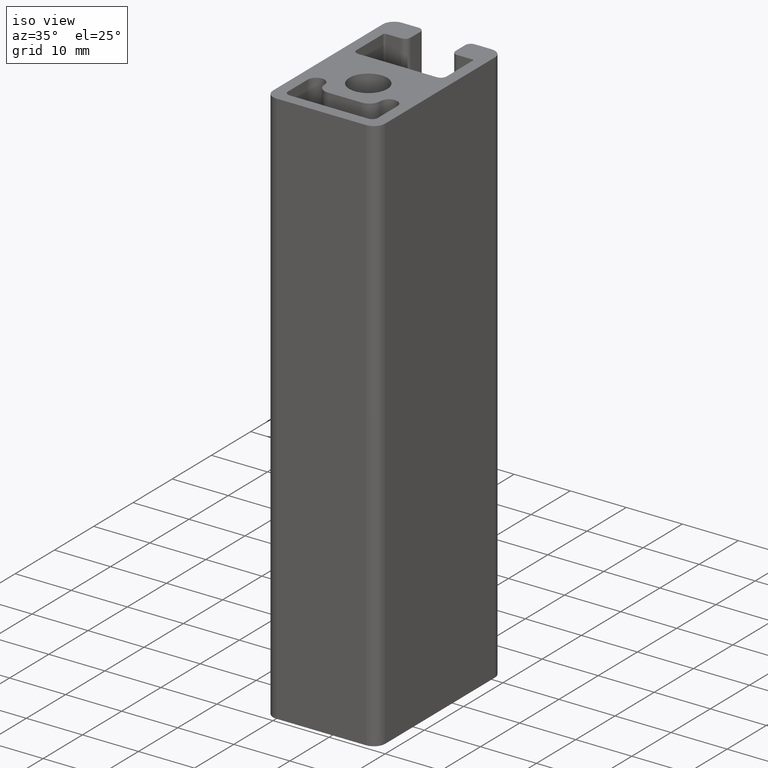
[diagram: clean part render]
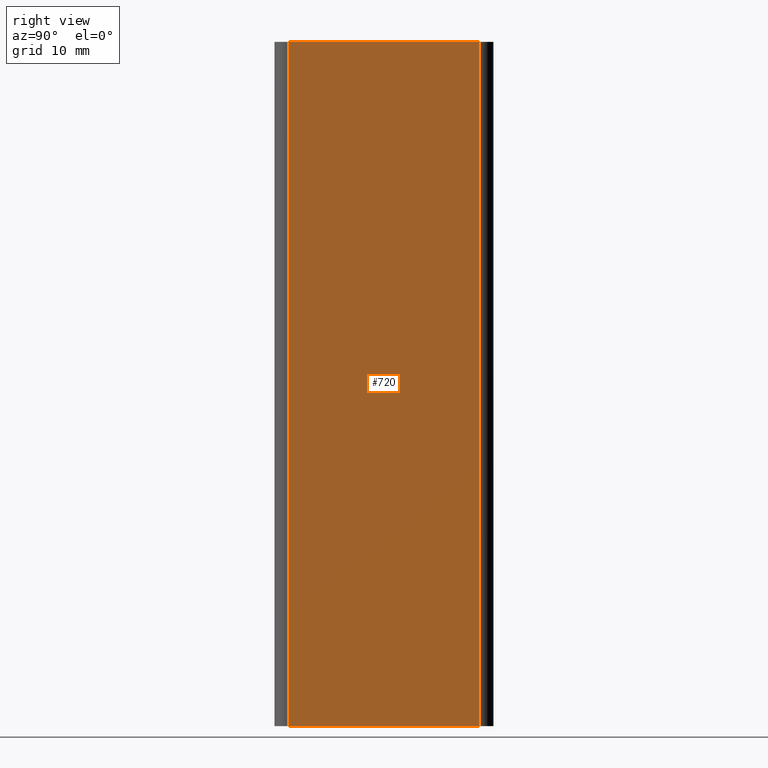
[diagram: tour spotlight — one face highlighted and labeled with its STEP entity id]
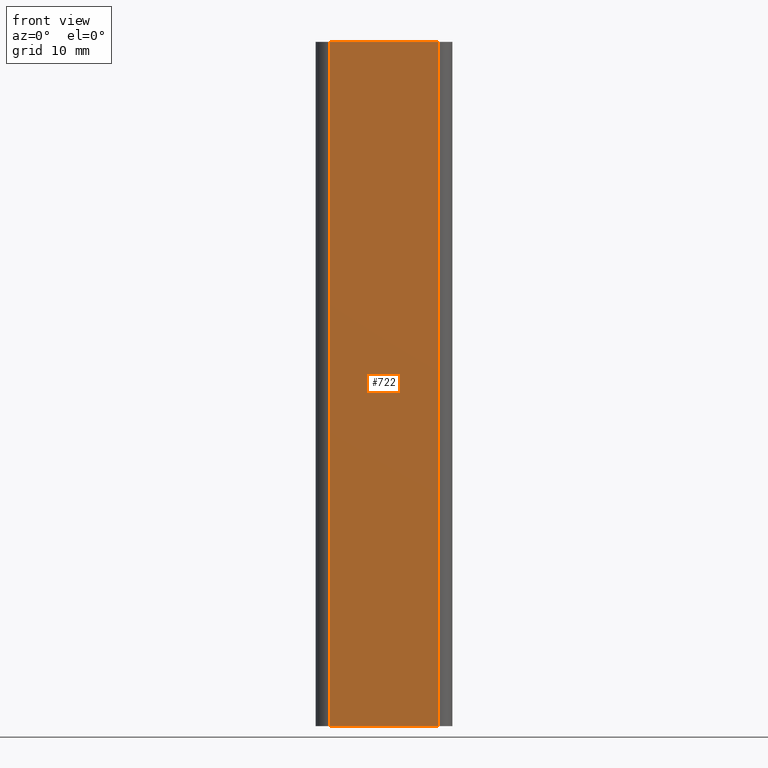
[diagram: tour spotlight — one face highlighted and labeled with its STEP entity id]
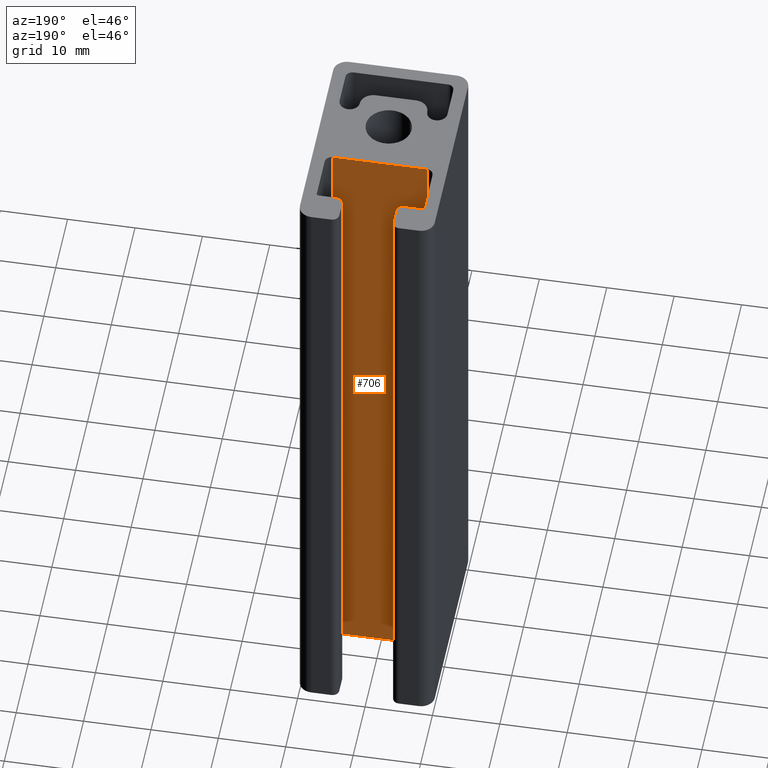
[diagram: tour spotlight — one face highlighted and labeled with its STEP entity id]
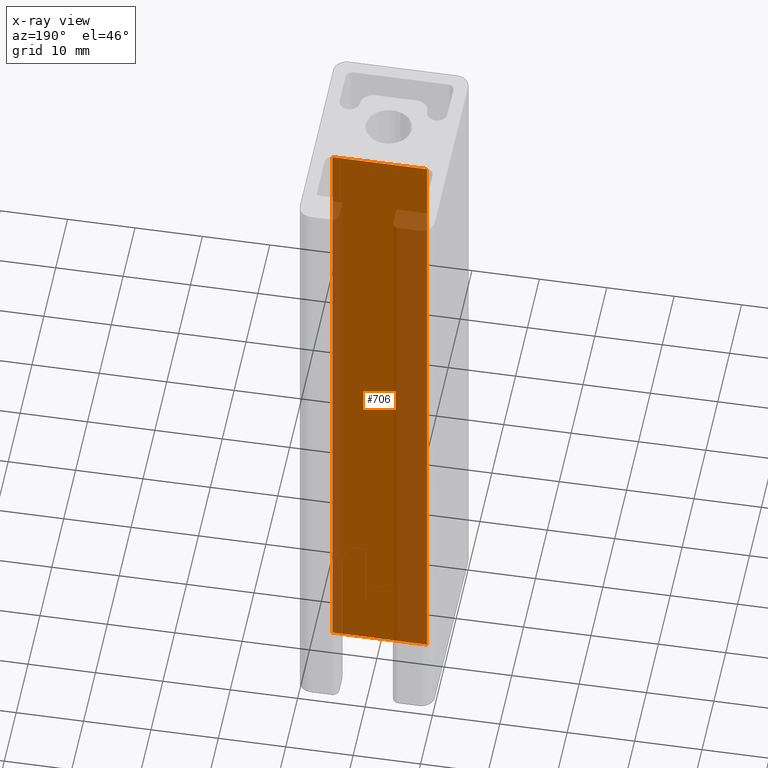
[diagram: x-ray of the same camera — body ghosted, this tour face saturated]
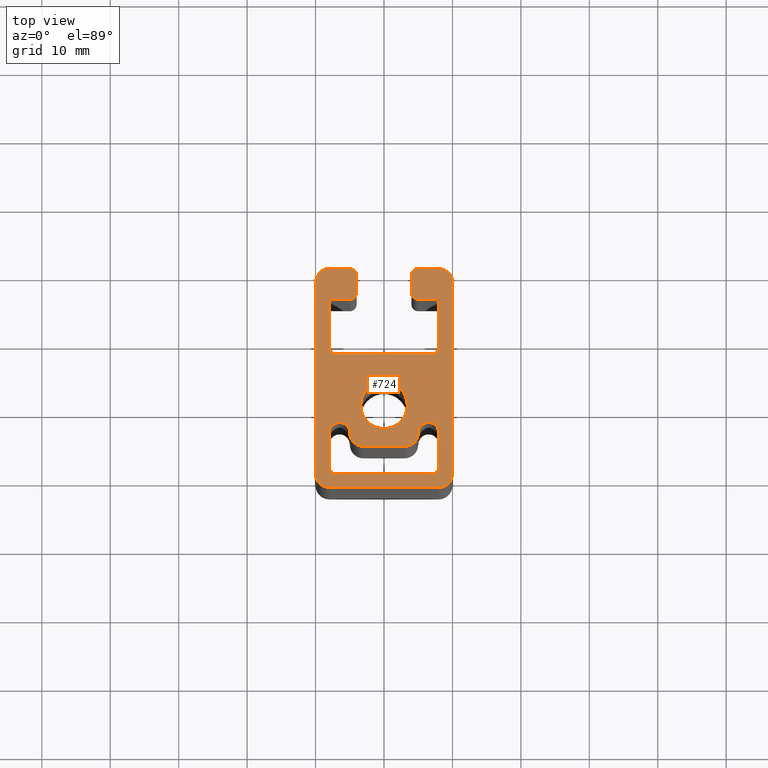
[diagram: tour spotlight — one face highlighted and labeled with its STEP entity id]
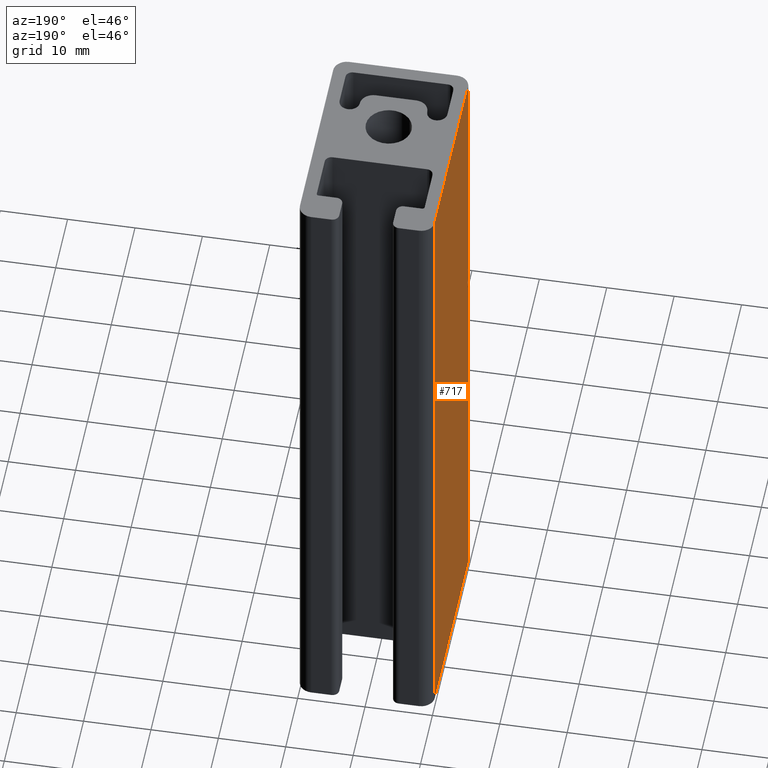
[diagram: tour spotlight — one face highlighted and labeled with its STEP entity id]
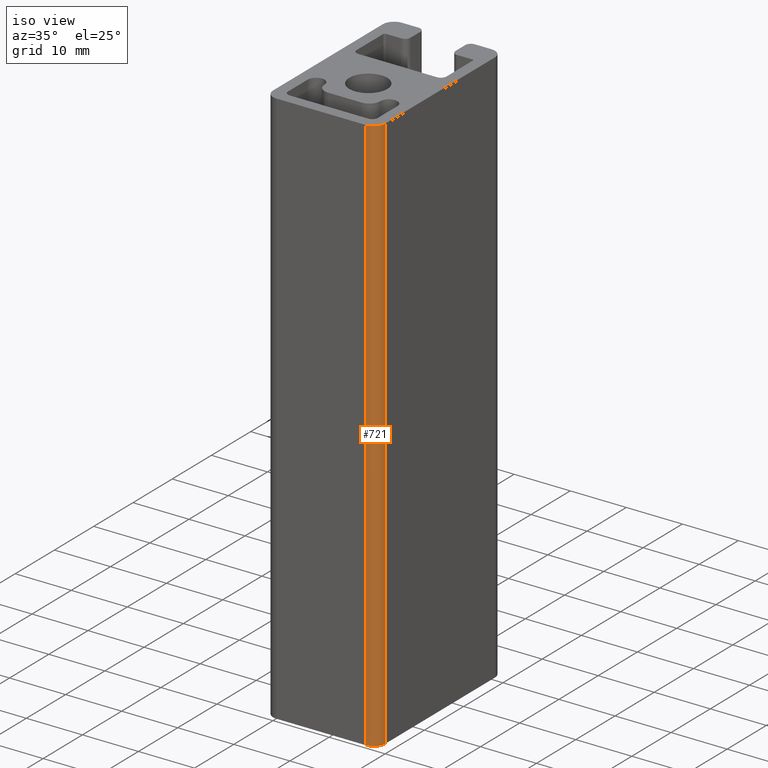
[diagram: tour spotlight — one face highlighted and labeled with its STEP entity id]
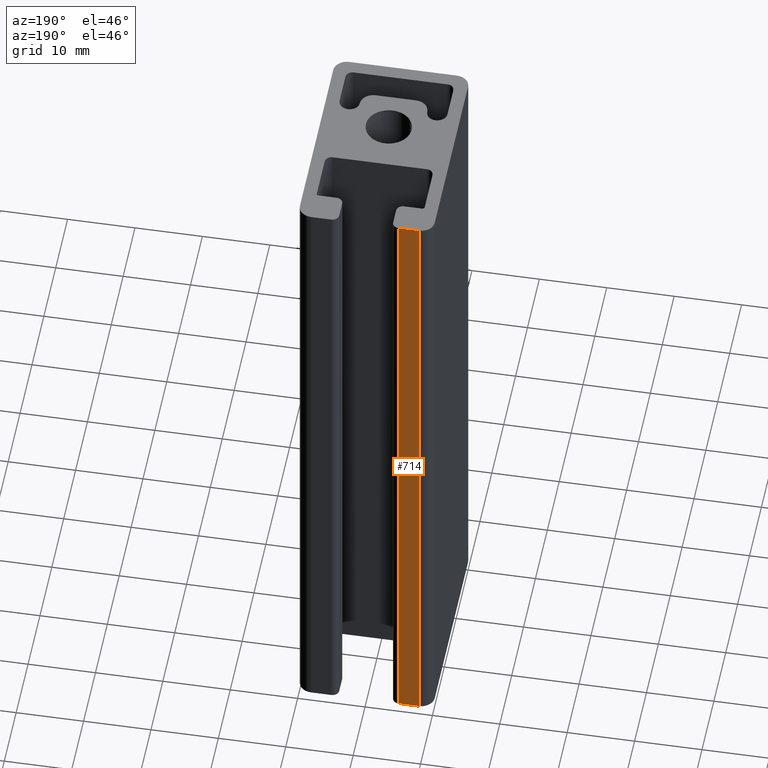
[diagram: tour spotlight — one face highlighted and labeled with its STEP entity id]
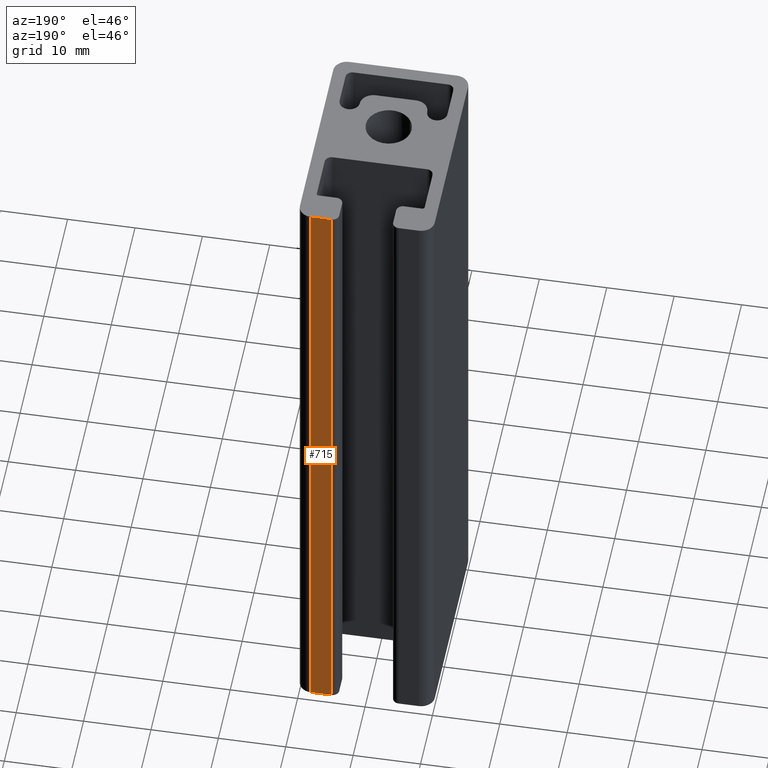
[diagram: tour spotlight — one face highlighted and labeled with its STEP entity id]
A machine part: a face-by-face anatomy tour. The part has 37 B-rep faces; the first image is the clean iso view, then the 8 largest visible faces are spotlighted one at a time (largest first), each with its STEP entity span.

Face 1 — right view, entity #720. In plain terms, the highlighted planar face has unit normal (1, 0, 0).
Definition (entity closure, byte-faithful):
#74=LINE('',#1213,#140);
#75=LINE('',#1217,#141);
#76=LINE('',#1219,#142);
#77=LINE('',#1220,#143);
#140=VECTOR('',#997,100.);
#141=VECTOR('',#1002,28.);
#142=VECTOR('',#1003,100.);
#143=VECTOR('',#1004,28.);
#161=PLANE('',#795);
#202=FACE_OUTER_BOUND('',#240,.T.);
#240=EDGE_LOOP('',(#587,#588,#589,#590));
#351=VERTEX_POINT('',#1210);
#352=VERTEX_POINT('',#1212);
#353=VERTEX_POINT('',#1216);
#354=VERTEX_POINT('',#1218);
#451=EDGE_CURVE('',#352,#351,#74,.T.);
#453=EDGE_CURVE('',#351,#353,#75,.T.);
#454=EDGE_CURVE('',#354,#353,#76,.T.);
#455=EDGE_CURVE('',#352,#354,#77,.T.);
#587=ORIENTED_EDGE('',*,*,#453,.T.);
#588=ORIENTED_EDGE('',*,*,#454,.F.);
#589=ORIENTED_EDGE('',*,*,#455,.F.);
#590=ORIENTED_EDGE('',*,*,#451,.T.);
#720=ADVANCED_FACE('',(#202),#161,.T.);
#795=AXIS2_PLACEMENT_3D('',#1215,#1000,#1001);
#997=DIRECTION('',(0.,0.,1.));
#1000=DIRECTION('center_axis',(1.,1.18952466924124E-16,0.));
#1001=DIRECTION('ref_axis',(-1.77635683940025E-16,1.,0.));
#1002=DIRECTION('',(1.18952466924124E-16,-1.,0.));
#1003=DIRECTION('',(0.,0.,1.));
#1004=DIRECTION('',(1.18952466924124E-16,-1.,0.));
#1210=CARTESIAN_POINT('',(10.,18.,100.));
#1212=CARTESIAN_POINT('',(10.,18.,0.));
#1213=CARTESIAN_POINT('',(10.,18.,0.));
#1215=CARTESIAN_POINT('Origin',(10.,-10.,0.));
#1216=CARTESIAN_POINT('',(10.,-10.,100.));
#1217=CARTESIAN_POINT('',(10.,-3.,100.));
#1218=CARTESIAN_POINT('',(10.,-10.,0.));
#1219=CARTESIAN_POINT('',(10.,-10.,0.));
#1220=CARTESIAN_POINT('',(10.,-3.,0.));

Face 2 — front view, entity #722. In plain terms, the highlighted planar face has unit normal (0, -1, 0).
Definition (entity closure, byte-faithful):
#70=LINE('',#1199,#136);
#78=LINE('',#1225,#144);
#79=LINE('',#1228,#145);
#80=LINE('',#1229,#146);
#136=VECTOR('',#981,100.);
#144=VECTOR('',#1009,100.);
#145=VECTOR('',#1014,16.);
#146=VECTOR('',#1015,16.);
#162=PLANE('',#799);
#204=FACE_OUTER_BOUND('',#242,.T.);
#242=EDGE_LOOP('',(#595,#596,#597,#598));
#345=VERTEX_POINT('',#1192);
#348=VERTEX_POINT('',#1197);
#355=VERTEX_POINT('',#1222);
#356=VERTEX_POINT('',#1224);
#444=EDGE_CURVE('',#348,#345,#70,.T.);
#457=EDGE_CURVE('',#356,#355,#78,.T.);
#459=EDGE_CURVE('',#355,#345,#79,.T.);
#460=EDGE_CURVE('',#356,#348,#80,.T.);
#595=ORIENTED_EDGE('',*,*,#459,.T.);
#596=ORIENTED_EDGE('',*,*,#444,.F.);
#597=ORIENTED_EDGE('',*,*,#460,.F.);
#598=ORIENTED_EDGE('',*,*,#457,.T.);
#722=ADVANCED_FACE('',(#204),#162,.T.);
#799=AXIS2_PLACEMENT_3D('',#1227,#1012,#1013);
#981=DIRECTION('',(0.,0.,1.));
#1009=DIRECTION('',(0.,0.,1.));
#1012=DIRECTION('center_axis',(0.,-1.,0.));
#1013=DIRECTION('ref_axis',(1.,0.,0.));
#1014=DIRECTION('',(-1.,0.,0.));
#1015=DIRECTION('',(-1.,0.,0.));
#1192=CARTESIAN_POINT('',(-8.,-12.,100.));
#1197=CARTESIAN_POINT('',(-8.,-12.,0.));
#1199=CARTESIAN_POINT('',(-8.,-12.,0.));
#1222=CARTESIAN_POINT('',(8.,-12.,100.));
#1224=CARTESIAN_POINT('',(8.,-12.,0.));
#1225=CARTESIAN_POINT('',(8.,-12.,0.));
#1227=CARTESIAN_POINT('Origin',(-8.,-12.,0.));
#1228=CARTESIAN_POINT('',(-4.,-12.,100.));
#1229=CARTESIAN_POINT('',(-4.,-12.,0.));

Face 3 — auxiliary view, entity #706. An x-ray twin of the same camera follows (body ghosted, this face saturated) — the face is partly hidden behind the body. In plain terms, the highlighted planar face has unit normal (-0, -1, 0).
Definition (entity closure, byte-faithful):
#46=LINE('',#1129,#112);
#47=LINE('',#1133,#113);
#48=LINE('',#1135,#114);
#49=LINE('',#1136,#115);
#112=VECTOR('',#913,100.);
#113=VECTOR('',#918,14.0000039919057);
#114=VECTOR('',#919,100.);
#115=VECTOR('',#920,14.0000039919057);
#154=PLANE('',#767);
#188=FACE_OUTER_BOUND('',#226,.T.);
#226=EDGE_LOOP('',(#531,#532,#533,#534));
#323=VERTEX_POINT('',#1126);
#324=VERTEX_POINT('',#1128);
#325=VERTEX_POINT('',#1132);
#326=VERTEX_POINT('',#1134);
#409=EDGE_CURVE('',#324,#323,#46,.T.);
#411=EDGE_CURVE('',#325,#323,#47,.T.);
#412=EDGE_CURVE('',#326,#325,#48,.T.);
#413=EDGE_CURVE('',#324,#326,#49,.T.);
#531=ORIENTED_EDGE('',*,*,#411,.F.);
#532=ORIENTED_EDGE('',*,*,#412,.F.);
#533=ORIENTED_EDGE('',*,*,#413,.F.);
#534=ORIENTED_EDGE('',*,*,#409,.T.);
#706=ADVANCED_FACE('',(#188),#154,.F.);
#767=AXIS2_PLACEMENT_3D('',#1131,#916,#917);
#913=DIRECTION('',(0.,0.,1.));
#916=DIRECTION('center_axis',(-3.17206488017303E-16,-1.,0.));
#917=DIRECTION('ref_axis',(1.,-3.5527136788005E-16,0.));
#918=DIRECTION('',(-1.,3.17206488017303E-16,0.));
#919=DIRECTION('',(0.,0.,1.));
#920=DIRECTION('',(1.,-3.17206488017303E-16,0.));
#1126=CARTESIAN_POINT('',(-7.00000199595285,7.5,100.));
#1128=CARTESIAN_POINT('',(-7.00000199595285,7.5,0.));
#1129=CARTESIAN_POINT('',(-7.00000199595285,7.5,0.));
#1131=CARTESIAN_POINT('Origin',(-7.00000199595285,7.5,0.));
#1132=CARTESIAN_POINT('',(7.00000199595286,7.5,100.));
#1133=CARTESIAN_POINT('',(-3.50000099797643,7.5,100.));
#1134=CARTESIAN_POINT('',(7.00000199595286,7.5,0.));
#1135=CARTESIAN_POINT('',(7.00000199595286,7.5,0.));
#1136=CARTESIAN_POINT('',(-3.50000099797643,7.5,0.));

Face 4 — top view, entity #724. In plain terms, the highlighted planar face has unit normal (0, 0, 1).
Definition (entity closure, byte-faithful):
#15=LINE('',#1029,#81);
#20=LINE('',#1043,#86);
#25=LINE('',#1061,#91);
#30=LINE('',#1079,#96);
#35=LINE('',#1097,#101);
#39=LINE('',#1109,#105);
#43=LINE('',#1121,#109);
#47=LINE('',#1133,#113);
#51=LINE('',#1145,#117);
#55=LINE('',#1157,#121);
#59=LINE('',#1169,#125);
#65=LINE('',#1184,#131);
#66=LINE('',#1187,#132);
#71=LINE('',#1202,#137);
#75=LINE('',#1217,#141);
#79=LINE('',#1228,#145);
#81=VECTOR('',#812,14.0000011505603);
#86=VECTOR('',#825,5.00000057528016);
#91=VECTOR('',#844,5.99999999999999);
#96=VECTOR('',#863,5.00000057528015);
#101=VECTOR('',#882,2.50000399190596);
#105=VECTOR('',#894,2.70000144973507);
#109=VECTOR('',#906,6.70000144973492);
#113=VECTOR('',#918,14.0000039919057);
#117=VECTOR('',#930,6.70000144973492);
#121=VECTOR('',#942,2.70000144973507);
#125=VECTOR('',#954,2.50000399190597);
#131=VECTOR('',#968,3.00000199595299);
#132=VECTOR('',#971,3.00000199595296);
#137=VECTOR('',#984,28.);
#141=VECTOR('',#1002,28.);
#145=VECTOR('',#1014,16.);
#164=PLANE('',#801);
#168=FACE_BOUND('',#247,.T.);
#169=FACE_BOUND('',#248,.T.);
#206=FACE_OUTER_BOUND('',#246,.T.);
#246=EDGE_LOOP('',(#634,#635,#636,#637,#638,#639,#640,#641,#642,#643,#644,
#645,#646,#647,#648,#649,#650,#651,#652,#653,#654,#655,#656,#657));
#247=EDGE_LOOP('',(#658));
#248=EDGE_LOOP('',(#659,#660,#661,#662,#663,#664,#665,#666,#667,#668));
#249=CIRCLE('',#728,3.4);
#251=CIRCLE('',#732,0.999999424719846);
#253=CIRCLE('',#736,1.5);
#255=CIRCLE('',#739,2.);
#257=CIRCLE('',#743,2.);
#259=CIRCLE('',#746,1.5);
#261=CIRCLE('',#750,0.999999424719839);
#263=CIRCLE('',#753,0.999998004047022);
#265=CIRCLE('',#757,0.999998004047022);
#267=CIRCLE('',#761,0.300000546217913);
#269=CIRCLE('',#765,0.999998004047152);
#271=CIRCLE('',#769,0.99999800404715);
#273=CIRCLE('',#773,0.300000546217916);
#275=CIRCLE('',#777,0.999998004047022);
#277=CIRCLE('',#781,0.999998004047022);
#279=CIRCLE('',#786,2.);
#281=CIRCLE('',#790,1.99999999999999);
#283=CIRCLE('',#793,2.);
#285=CIRCLE('',#797,2.);
#287=VERTEX_POINT('',#1022);
#289=VERTEX_POINT('',#1027);
#290=VERTEX_POINT('',#1028);
#293=VERTEX_POINT('',#1036);
#295=VERTEX_POINT('',#1042);
#297=VERTEX_POINT('',#1048);
#299=VERTEX_POINT('',#1054);
#301=VERTEX_POINT('',#1060);
#303=VERTEX_POINT('',#1066);
#305=VERTEX_POINT('',#1072);
#307=VERTEX_POINT('',#1078);
#309=VERTEX_POINT('',#1087);
#310=VERTEX_POINT('',#1088);
#313=VERTEX_POINT('',#1096);
#315=VERTEX_POINT('',#1102);
#317=VERTEX_POINT('',#1108);
#319=VERTEX_POINT('',#1114);
#321=VERTEX_POINT('',#1120);
#323=VERTEX_POINT('',#1126);
#325=VERTEX_POINT('',#1132);
#327=VERTEX_POINT('',#1138);
#329=VERTEX_POINT('',#1144);
#331=VERTEX_POINT('',#1150);
#333=VERTEX_POINT('',#1156);
#335=VERTEX_POINT('',#1162);
#337=VERTEX_POINT('',#1168);
#339=VERTEX_POINT('',#1174);
#342=VERTEX_POINT('',#1182);
#343=VERTEX_POINT('',#1186);
#345=VERTEX_POINT('',#1192);
#346=VERTEX_POINT('',#1193);
#349=VERTEX_POINT('',#1201);
#351=VERTEX_POINT('',#1210);
#353=VERTEX_POINT('',#1216);
#355=VERTEX_POINT('',#1222);
#357=EDGE_CURVE('',#287,#287,#249,.T.);
#359=EDGE_CURVE('',#289,#290,#15,.T.);
#363=EDGE_CURVE('',#290,#293,#251,.T.);
#366=EDGE_CURVE('',#293,#295,#20,.T.);
#369=EDGE_CURVE('',#295,#297,#253,.T.);
#372=EDGE_CURVE('',#297,#299,#255,.T.);
#375=EDGE_CURVE('',#299,#301,#25,.T.);
#378=EDGE_CURVE('',#301,#303,#257,.T.);
#381=EDGE_CURVE('',#303,#305,#259,.T.);
#384=EDGE_CURVE('',#305,#307,#30,.T.);
#387=EDGE_CURVE('',#307,#289,#261,.T.);
#389=EDGE_CURVE('',#309,#310,#263,.T.);
#393=EDGE_CURVE('',#313,#309,#35,.T.);
#396=EDGE_CURVE('',#315,#313,#265,.T.);
#399=EDGE_CURVE('',#317,#315,#39,.T.);
#402=EDGE_CURVE('',#319,#317,#267,.T.);
#405=EDGE_CURVE('',#321,#319,#43,.T.);
#408=EDGE_CURVE('',#323,#321,#269,.T.);
#411=EDGE_CURVE('',#325,#323,#47,.T.);
#414=EDGE_CURVE('',#327,#325,#271,.T.);
#417=EDGE_CURVE('',#329,#327,#51,.T.);
#420=EDGE_CURVE('',#331,#329,#273,.T.);
#423=EDGE_CURVE('',#333,#331,#55,.T.);
#426=EDGE_CURVE('',#335,#333,#275,.T.);
#429=EDGE_CURVE('',#337,#335,#59,.T.);
#432=EDGE_CURVE('',#339,#337,#277,.T.);
#437=EDGE_CURVE('',#342,#310,#65,.T.);
#438=EDGE_CURVE('',#339,#343,#66,.T.);
#441=EDGE_CURVE('',#345,#346,#279,.T.);
#445=EDGE_CURVE('',#346,#349,#71,.T.);
#448=EDGE_CURVE('',#349,#342,#281,.T.);
#450=EDGE_CURVE('',#343,#351,#283,.T.);
#453=EDGE_CURVE('',#351,#353,#75,.T.);
#456=EDGE_CURVE('',#353,#355,#285,.T.);
#459=EDGE_CURVE('',#355,#345,#79,.T.);
#634=ORIENTED_EDGE('',*,*,#389,.T.);
#635=ORIENTED_EDGE('',*,*,#437,.F.);
#636=ORIENTED_EDGE('',*,*,#448,.F.);
#637=ORIENTED_EDGE('',*,*,#445,.F.);
#638=ORIENTED_EDGE('',*,*,#441,.F.);
#639=ORIENTED_EDGE('',*,*,#459,.F.);
#640=ORIENTED_EDGE('',*,*,#456,.F.);
#641=ORIENTED_EDGE('',*,*,#453,.F.);
#642=ORIENTED_EDGE('',*,*,#450,.F.);
#643=ORIENTED_EDGE('',*,*,#438,.F.);
#644=ORIENTED_EDGE('',*,*,#432,.T.);
#645=ORIENTED_EDGE('',*,*,#429,.T.);
#646=ORIENTED_EDGE('',*,*,#426,.T.);
#647=ORIENTED_EDGE('',*,*,#423,.T.);
#648=ORIENTED_EDGE('',*,*,#420,.T.);
#649=ORIENTED_EDGE('',*,*,#417,.T.);
#650=ORIENTED_EDGE('',*,*,#414,.T.);
#651=ORIENTED_EDGE('',*,*,#411,.T.);
#652=ORIENTED_EDGE('',*,*,#408,.T.);
#653=ORIENTED_EDGE('',*,*,#405,.T.);
#654=ORIENTED_EDGE('',*,*,#402,.T.);
#655=ORIENTED_EDGE('',*,*,#399,.T.);
#656=ORIENTED_EDGE('',*,*,#396,.T.);
#657=ORIENTED_EDGE('',*,*,#393,.T.);
#658=ORIENTED_EDGE('',*,*,#357,.T.);
#659=ORIENTED_EDGE('',*,*,#359,.T.);
#660=ORIENTED_EDGE('',*,*,#363,.T.);
#661=ORIENTED_EDGE('',*,*,#366,.T.);
#662=ORIENTED_EDGE('',*,*,#369,.T.);
#663=ORIENTED_EDGE('',*,*,#372,.T.);
#664=ORIENTED_EDGE('',*,*,#375,.T.);
#665=ORIENTED_EDGE('',*,*,#378,.T.);
#666=ORIENTED_EDGE('',*,*,#381,.T.);
#667=ORIENTED_EDGE('',*,*,#384,.T.);
#668=ORIENTED_EDGE('',*,*,#387,.T.);
#724=ADVANCED_FACE('',(#206,#168,#169),#164,.T.);
#728=AXIS2_PLACEMENT_3D('',#1023,#806,#807);
#732=AXIS2_PLACEMENT_3D('',#1037,#818,#819);
#736=AXIS2_PLACEMENT_3D('',#1049,#830,#831);
#739=AXIS2_PLACEMENT_3D('',#1055,#837,#838);
#743=AXIS2_PLACEMENT_3D('',#1067,#849,#850);
#746=AXIS2_PLACEMENT_3D('',#1073,#856,#857);
#750=AXIS2_PLACEMENT_3D('',#1084,#868,#869);
#753=AXIS2_PLACEMENT_3D('',#1089,#874,#875);
#757=AXIS2_PLACEMENT_3D('',#1103,#887,#888);
#761=AXIS2_PLACEMENT_3D('',#1115,#899,#900);
#765=AXIS2_PLACEMENT_3D('',#1127,#911,#912);
#769=AXIS2_PLACEMENT_3D('',#1139,#923,#924);
#773=AXIS2_PLACEMENT_3D('',#1151,#935,#936);
#777=AXIS2_PLACEMENT_3D('',#1163,#947,#948);
#781=AXIS2_PLACEMENT_3D('',#1175,#959,#960);
#786=AXIS2_PLACEMENT_3D('',#1194,#976,#977);
#790=AXIS2_PLACEMENT_3D('',#1207,#989,#990);
#793=AXIS2_PLACEMENT_3D('',#1211,#995,#996);
#797=AXIS2_PLACEMENT_3D('',#1223,#1007,#1008);
#801=AXIS2_PLACEMENT_3D('',#1231,#1018,#1019);
#806=DIRECTION('center_axis',(0.,0.,-1.));
#807=DIRECTION('ref_axis',(-1.,0.,0.));
#812=DIRECTION('',(-1.,-1.90323931437229E-15,0.));
#818=DIRECTION('center_axis',(0.,0.,-1.));
#819=DIRECTION('ref_axis',(-1.,1.1102236633148E-14,0.));
#825=DIRECTION('',(-1.11022289688732E-15,1.,0.));
#830=DIRECTION('center_axis',(0.,0.,-1.));
#831=DIRECTION('ref_axis',(1.,-2.96059473233372E-15,0.));
#837=DIRECTION('center_axis',(0.,0.,1.));
#838=DIRECTION('ref_axis',(1.,6.38378239159465E-15,0.));
#844=DIRECTION('',(1.,3.7007434154172E-16,0.));
#849=DIRECTION('center_axis',(0.,0.,1.));
#850=DIRECTION('ref_axis',(4.16333634234434E-15,1.,0.));
#856=DIRECTION('center_axis',(0.,0.,-1.));
#857=DIRECTION('ref_axis',(1.,-1.85037170770859E-15,0.));
#863=DIRECTION('',(-2.66453495252956E-15,-1.,0.));
#868=DIRECTION('center_axis',(0.,0.,-1.));
#869=DIRECTION('ref_axis',(-1.11022366331481E-15,-1.,0.));
#874=DIRECTION('center_axis',(0.,0.,1.));
#875=DIRECTION('ref_axis',(-1.,-2.44249552928157E-14,0.));
#882=DIRECTION('',(-3.10861950522375E-15,1.,0.));
#887=DIRECTION('center_axis',(0.,0.,1.));
#888=DIRECTION('ref_axis',(7.21646406378645E-15,1.,0.));
#894=DIRECTION('',(1.,5.75670888853682E-15,0.));
#899=DIRECTION('center_axis',(0.,0.,-1.));
#900=DIRECTION('ref_axis',(-8.5116943579931E-14,1.,0.));
#906=DIRECTION('',(3.47980275706518E-15,1.,0.));
#911=DIRECTION('center_axis',(0.,0.,-1.));
#912=DIRECTION('ref_axis',(-1.,3.33067572174717E-15,0.));
#918=DIRECTION('',(-1.,3.17206488017303E-16,0.));
#923=DIRECTION('center_axis',(0.,0.,-1.));
#924=DIRECTION('ref_axis',(-1.11022524058239E-15,-1.,0.));
#930=DIRECTION('',(-3.3140978638716E-16,-1.,0.));
#935=DIRECTION('center_axis',(0.,0.,-1.));
#936=DIRECTION('ref_axis',(1.,-8.88176802573186E-14,0.));
#942=DIRECTION('',(1.,9.86864380892028E-15,0.));
#947=DIRECTION('center_axis',(0.,0.,1.));
#948=DIRECTION('ref_axis',(1.,-1.33227028869904E-14,0.));
#954=DIRECTION('',(4.44088500746247E-16,-1.,0.));
#959=DIRECTION('center_axis',(0.,0.,1.));
#960=DIRECTION('ref_axis',(-6.10623882320389E-15,-1.,0.));
#968=DIRECTION('',(1.,0.,0.));
#971=DIRECTION('',(1.,0.,0.));
#976=DIRECTION('center_axis',(0.,0.,-1.));
#977=DIRECTION('ref_axis',(1.,1.11022302462516E-15,0.));
#984=DIRECTION('',(-1.58603289232165E-16,1.,0.));
#989=DIRECTION('center_axis',(0.,0.,-1.));
#990=DIRECTION('ref_axis',(-2.7755575615629E-15,-1.,0.));
#995=DIRECTION('center_axis',(0.,0.,-1.));
#996=DIRECTION('ref_axis',(-1.,-1.11022302462516E-15,0.));
#1002=DIRECTION('',(1.18952466924124E-16,-1.,0.));
#1007=DIRECTION('center_axis',(0.,0.,-1.));
#1008=DIRECTION('ref_axis',(-1.11022302462516E-15,1.,0.));
#1014=DIRECTION('',(-1.,0.,0.));
#1018=DIRECTION('center_axis',(0.,0.,1.));
#1019=DIRECTION('ref_axis',(1.,0.,0.));
#1022=CARTESIAN_POINT('',(3.4,-4.163799117101E-16,100.));
#1023=CARTESIAN_POINT('Origin',(0.,0.,100.));
#1027=CARTESIAN_POINT('',(7.00000057528015,-9.99999999999999,100.));
#1028=CARTESIAN_POINT('',(-7.00000057528017,-10.,100.));
#1029=CARTESIAN_POINT('',(-3.50000028764007,-10.,100.));
#1036=CARTESIAN_POINT('',(-8.00000000000001,-9.00000057528016,100.));
#1037=CARTESIAN_POINT('Origin',(-7.00000057528017,-9.00000057528017,100.));
#1042=CARTESIAN_POINT('',(-8.00000000000002,-4.,100.));
#1043=CARTESIAN_POINT('',(-8.00000000000002,-6.10622612448701E-15,100.));
#1048=CARTESIAN_POINT('',(-4.99999999999999,-4.00000000000001,100.));
#1049=CARTESIAN_POINT('Origin',(-6.5,-4.,100.));
#1054=CARTESIAN_POINT('',(-2.99999999999999,-5.99999999999999,100.));
#1055=CARTESIAN_POINT('Origin',(-2.99999999999999,-3.99999999999999,100.));
#1060=CARTESIAN_POINT('',(2.99999999999999,-5.99999999999999,100.));
#1061=CARTESIAN_POINT('',(1.5,-5.99999999999999,100.));
#1066=CARTESIAN_POINT('',(5.,-4.,100.));
#1067=CARTESIAN_POINT('Origin',(3.,-3.99999999999999,100.));
#1072=CARTESIAN_POINT('',(8.,-4.00000000000001,100.));
#1073=CARTESIAN_POINT('Origin',(6.5,-4.,100.));
#1078=CARTESIAN_POINT('',(7.99999999999999,-9.00000057528016,100.));
#1079=CARTESIAN_POINT('',(8.00000000000001,-2.50000028764009,100.));
#1084=CARTESIAN_POINT('Origin',(7.00000057528015,-9.00000057528015,100.));
#1087=CARTESIAN_POINT('',(-4.,19.000001995953,100.));
#1088=CARTESIAN_POINT('',(-4.99999800404701,20.,100.));
#1089=CARTESIAN_POINT('Origin',(-4.99999800404702,19.000001995953,100.));
#1096=CARTESIAN_POINT('',(-3.99999999999999,16.499998004047,100.));
#1097=CARTESIAN_POINT('',(-3.99999999999998,11.5000009979765,100.));
#1102=CARTESIAN_POINT('',(-4.99999800404702,15.5,100.));
#1103=CARTESIAN_POINT('Origin',(-4.99999800404701,16.499998004047,100.));
#1108=CARTESIAN_POINT('',(-7.69999945378209,15.5,100.));
#1109=CARTESIAN_POINT('',(-2.49999900202354,15.5,100.));
#1114=CARTESIAN_POINT('',(-7.99999999999998,15.1999994537821,100.));
#1115=CARTESIAN_POINT('Origin',(-7.69999945378207,15.1999994537821,100.));
#1120=CARTESIAN_POINT('',(-8.00000000000001,8.49999800404716,100.));
#1121=CARTESIAN_POINT('',(-8.,9.59999972689105,100.));
#1126=CARTESIAN_POINT('',(-7.00000199595285,7.5,100.));
#1127=CARTESIAN_POINT('Origin',(-7.00000199595286,8.49999800404715,100.));
#1132=CARTESIAN_POINT('',(7.00000199595286,7.5,100.));
#1133=CARTESIAN_POINT('',(-3.50000099797643,7.5,100.));
#1138=CARTESIAN_POINT('',(8.00000000000001,8.49999800404716,100.));
#1139=CARTESIAN_POINT('Origin',(7.00000199595286,8.49999800404715,100.));
#1144=CARTESIAN_POINT('',(8.00000000000001,15.1999994537821,100.));
#1145=CARTESIAN_POINT('',(8.00000000000001,6.24999900202358,100.));
#1150=CARTESIAN_POINT('',(7.6999994537821,15.5,100.));
#1151=CARTESIAN_POINT('Origin',(7.6999994537821,15.1999994537821,100.));
#1156=CARTESIAN_POINT('',(4.99999800404704,15.5,100.));
#1157=CARTESIAN_POINT('',(3.84999972689099,15.5,100.));
#1162=CARTESIAN_POINT('',(4.00000000000001,16.499998004047,100.));
#1163=CARTESIAN_POINT('Origin',(4.99999800404703,16.499998004047,100.));
#1168=CARTESIAN_POINT('',(4.00000000000001,19.000001995953,100.));
#1169=CARTESIAN_POINT('',(4.00000000000001,10.2499990020235,100.));
#1174=CARTESIAN_POINT('',(4.99999800404703,20.,100.));
#1175=CARTESIAN_POINT('Origin',(4.99999800404703,19.000001995953,100.));
#1182=CARTESIAN_POINT('',(-8.00000000000001,20.,100.));
#1184=CARTESIAN_POINT('',(4.,20.,100.));
#1186=CARTESIAN_POINT('',(8.,20.,100.));
#1187=CARTESIAN_POINT('',(4.,20.,100.));
#1192=CARTESIAN_POINT('',(-8.,-12.,100.));
#1193=CARTESIAN_POINT('',(-10.,-10.,100.));
#1194=CARTESIAN_POINT('Origin',(-8.,-10.,100.));
#1201=CARTESIAN_POINT('',(-10.,18.,100.));
#1202=CARTESIAN_POINT('',(-10.,11.,100.));
#1207=CARTESIAN_POINT('Origin',(-8.00000000000001,18.,100.));
#1210=CARTESIAN_POINT('',(10.,18.,100.));
#1211=CARTESIAN_POINT('Origin',(8.,18.,100.));
#1216=CARTESIAN_POINT('',(10.,-10.,100.));
#1217=CARTESIAN_POINT('',(10.,-3.,100.));
#1222=CARTESIAN_POINT('',(8.,-12.,100.));
#1223=CARTESIAN_POINT('Origin',(8.,-10.,100.));
#1228=CARTESIAN_POINT('',(-4.,-12.,100.));
#1231=CARTESIAN_POINT('Origin',(-1.11022302462516E-15,4.,100.));

Face 5 — auxiliary view, entity #717. In plain terms, the highlighted planar face has unit normal (-1, -0, 0).
Definition (entity closure, byte-faithful):
#69=LINE('',#1196,#135);
#71=LINE('',#1202,#137);
#72=LINE('',#1204,#138);
#73=LINE('',#1205,#139);
#135=VECTOR('',#978,100.);
#137=VECTOR('',#984,28.);
#138=VECTOR('',#985,100.);
#139=VECTOR('',#986,28.);
#160=PLANE('',#788);
#199=FACE_OUTER_BOUND('',#237,.T.);
#237=EDGE_LOOP('',(#575,#576,#577,#578));
#346=VERTEX_POINT('',#1193);
#347=VERTEX_POINT('',#1195);
#349=VERTEX_POINT('',#1201);
#350=VERTEX_POINT('',#1203);
#442=EDGE_CURVE('',#347,#346,#69,.T.);
#445=EDGE_CURVE('',#346,#349,#71,.T.);
#446=EDGE_CURVE('',#350,#349,#72,.T.);
#447=EDGE_CURVE('',#347,#350,#73,.T.);
#575=ORIENTED_EDGE('',*,*,#445,.T.);
#576=ORIENTED_EDGE('',*,*,#446,.F.);
#577=ORIENTED_EDGE('',*,*,#447,.F.);
#578=ORIENTED_EDGE('',*,*,#442,.T.);
#717=ADVANCED_FACE('',(#199),#160,.T.);
#788=AXIS2_PLACEMENT_3D('',#1200,#982,#983);
#978=DIRECTION('',(0.,0.,1.));
#982=DIRECTION('center_axis',(-1.,-1.58603289232165E-16,0.));
#983=DIRECTION('ref_axis',(1.77635683940025E-16,-1.,0.));
#984=DIRECTION('',(-1.58603289232165E-16,1.,0.));
#985=DIRECTION('',(0.,0.,1.));
#986=DIRECTION('',(-1.58603289232165E-16,1.,0.));
#1193=CARTESIAN_POINT('',(-10.,-10.,100.));
#1195=CARTESIAN_POINT('',(-10.,-10.,0.));
#1196=CARTESIAN_POINT('',(-10.,-10.,0.));
#1200=CARTESIAN_POINT('Origin',(-10.,18.,0.));
#1201=CARTESIAN_POINT('',(-10.,18.,100.));
#1202=CARTESIAN_POINT('',(-10.,11.,100.));
#1203=CARTESIAN_POINT('',(-10.,18.,0.));
#1204=CARTESIAN_POINT('',(-10.,18.,0.));
#1205=CARTESIAN_POINT('',(-10.,11.,0.));

Face 6 — iso view, entity #721. In plain terms, the highlighted cylindrical surface (edge-blend (fillet) strip) has radius 2 mm, axis along (0, 0, 1).
Definition (entity closure, byte-faithful):
#76=LINE('',#1219,#142);
#78=LINE('',#1225,#144);
#142=VECTOR('',#1003,100.);
#144=VECTOR('',#1009,100.);
#203=FACE_OUTER_BOUND('',#241,.T.);
#241=EDGE_LOOP('',(#591,#592,#593,#594));
#285=CIRCLE('',#797,2.);
#286=CIRCLE('',#798,2.);
#353=VERTEX_POINT('',#1216);
#354=VERTEX_POINT('',#1218);
#355=VERTEX_POINT('',#1222);
#356=VERTEX_POINT('',#1224);
#454=EDGE_CURVE('',#354,#353,#76,.T.);
#456=EDGE_CURVE('',#353,#355,#285,.T.);
#457=EDGE_CURVE('',#356,#355,#78,.T.);
#458=EDGE_CURVE('',#354,#356,#286,.T.);
#591=ORIENTED_EDGE('',*,*,#456,.T.);
#592=ORIENTED_EDGE('',*,*,#457,.F.);
#593=ORIENTED_EDGE('',*,*,#458,.F.);
#594=ORIENTED_EDGE('',*,*,#454,.T.);
#687=CYLINDRICAL_SURFACE('',#796,2.);
#721=ADVANCED_FACE('',(#203),#687,.T.);
#796=AXIS2_PLACEMENT_3D('',#1221,#1005,#1006);
#797=AXIS2_PLACEMENT_3D('',#1223,#1007,#1008);
#798=AXIS2_PLACEMENT_3D('',#1226,#1010,#1011);
#1003=DIRECTION('',(0.,0.,1.));
#1005=DIRECTION('center_axis',(0.,0.,1.));
#1006=DIRECTION('ref_axis',(-1.11022302462516E-15,1.,0.));
#1007=DIRECTION('center_axis',(0.,0.,-1.));
#1008=DIRECTION('ref_axis',(-1.11022302462516E-15,1.,0.));
#1009=DIRECTION('',(0.,0.,1.));
#1010=DIRECTION('center_axis',(0.,0.,-1.));
#1011=DIRECTION('ref_axis',(-1.11022302462516E-15,1.,0.));
#1216=CARTESIAN_POINT('',(10.,-10.,100.));
#1218=CARTESIAN_POINT('',(10.,-10.,0.));
#1219=CARTESIAN_POINT('',(10.,-10.,0.));
#1221=CARTESIAN_POINT('Origin',(8.,-10.,0.));
#1222=CARTESIAN_POINT('',(8.,-12.,100.));
#1223=CARTESIAN_POINT('Origin',(8.,-10.,100.));
#1224=CARTESIAN_POINT('',(8.,-12.,0.));
#1225=CARTESIAN_POINT('',(8.,-12.,0.));
#1226=CARTESIAN_POINT('Origin',(8.,-10.,0.));

Face 7 — auxiliary view, entity #714. In plain terms, the highlighted planar face has unit normal (0, 1, 0).
Definition (entity closure, byte-faithful):
#34=LINE('',#1094,#100);
#63=LINE('',#1181,#129);
#64=LINE('',#1183,#130);
#65=LINE('',#1184,#131);
#100=VECTOR('',#879,100.);
#129=VECTOR('',#966,3.00000199595299);
#130=VECTOR('',#967,100.);
#131=VECTOR('',#968,3.00000199595299);
#158=PLANE('',#783);
#196=FACE_OUTER_BOUND('',#234,.T.);
#234=EDGE_LOOP('',(#563,#564,#565,#566));
#310=VERTEX_POINT('',#1088);
#312=VERTEX_POINT('',#1092);
#341=VERTEX_POINT('',#1180);
#342=VERTEX_POINT('',#1182);
#392=EDGE_CURVE('',#310,#312,#34,.T.);
#435=EDGE_CURVE('',#341,#312,#63,.T.);
#436=EDGE_CURVE('',#341,#342,#64,.T.);
#437=EDGE_CURVE('',#342,#310,#65,.T.);
#563=ORIENTED_EDGE('',*,*,#392,.T.);
#564=ORIENTED_EDGE('',*,*,#435,.F.);
#565=ORIENTED_EDGE('',*,*,#436,.T.);
#566=ORIENTED_EDGE('',*,*,#437,.T.);
#714=ADVANCED_FACE('',(#196),#158,.T.);
#783=AXIS2_PLACEMENT_3D('',#1179,#964,#965);
#879=DIRECTION('',(0.,0.,-1.));
#964=DIRECTION('center_axis',(0.,1.,0.));
#965=DIRECTION('ref_axis',(-1.,0.,0.));
#966=DIRECTION('',(1.,0.,0.));
#967=DIRECTION('',(0.,0.,1.));
#968=DIRECTION('',(1.,0.,0.));
#1088=CARTESIAN_POINT('',(-4.99999800404701,20.,100.));
#1092=CARTESIAN_POINT('',(-4.99999800404701,20.,0.));
#1094=CARTESIAN_POINT('',(-4.99999800404702,20.,0.));
#1179=CARTESIAN_POINT('Origin',(8.,20.,0.));
#1180=CARTESIAN_POINT('',(-8.00000000000001,20.,0.));
#1181=CARTESIAN_POINT('',(4.,20.,0.));
#1182=CARTESIAN_POINT('',(-8.00000000000001,20.,100.));
#1183=CARTESIAN_POINT('',(-8.00000000000001,20.,0.));
#1184=CARTESIAN_POINT('',(4.,20.,100.));

Face 8 — auxiliary view, entity #715. In plain terms, the highlighted planar face has unit normal (0, 1, 0).
Definition (entity closure, byte-faithful):
#62=LINE('',#1177,#128);
#66=LINE('',#1187,#132);
#67=LINE('',#1189,#133);
#68=LINE('',#1190,#134);
#128=VECTOR('',#961,100.);
#132=VECTOR('',#971,3.00000199595296);
#133=VECTOR('',#972,100.);
#134=VECTOR('',#973,3.00000199595296);
#159=PLANE('',#784);
#197=FACE_OUTER_BOUND('',#235,.T.);
#235=EDGE_LOOP('',(#567,#568,#569,#570));
#339=VERTEX_POINT('',#1174);
#340=VERTEX_POINT('',#1176);
#343=VERTEX_POINT('',#1186);
#344=VERTEX_POINT('',#1188);
#433=EDGE_CURVE('',#339,#340,#62,.T.);
#438=EDGE_CURVE('',#339,#343,#66,.T.);
#439=EDGE_CURVE('',#344,#343,#67,.T.);
#440=EDGE_CURVE('',#340,#344,#68,.T.);
#567=ORIENTED_EDGE('',*,*,#433,.F.);
#568=ORIENTED_EDGE('',*,*,#438,.T.);
#569=ORIENTED_EDGE('',*,*,#439,.F.);
#570=ORIENTED_EDGE('',*,*,#440,.F.);
#715=ADVANCED_FACE('',(#197),#159,.T.);
#784=AXIS2_PLACEMENT_3D('',#1185,#969,#970);
#961=DIRECTION('',(0.,0.,-1.));
#969=DIRECTION('center_axis',(0.,1.,0.));
#970=DIRECTION('ref_axis',(-1.,0.,0.));
#971=DIRECTION('',(1.,0.,0.));
#972=DIRECTION('',(0.,0.,1.));
#973=DIRECTION('',(1.,0.,0.));
#1174=CARTESIAN_POINT('',(4.99999800404703,20.,100.));
#1176=CARTESIAN_POINT('',(4.99999800404703,20.,0.));
#1177=CARTESIAN_POINT('',(4.99999800404703,20.,0.));
#1185=CARTESIAN_POINT('Origin',(8.,20.,0.));
#1186=CARTESIAN_POINT('',(8.,20.,100.));
#1187=CARTESIAN_POINT('',(4.,20.,100.));
#1188=CARTESIAN_POINT('',(8.,20.,0.));
#1189=CARTESIAN_POINT('',(8.,20.,0.));
#1190=CARTESIAN_POINT('',(4.,20.,0.));